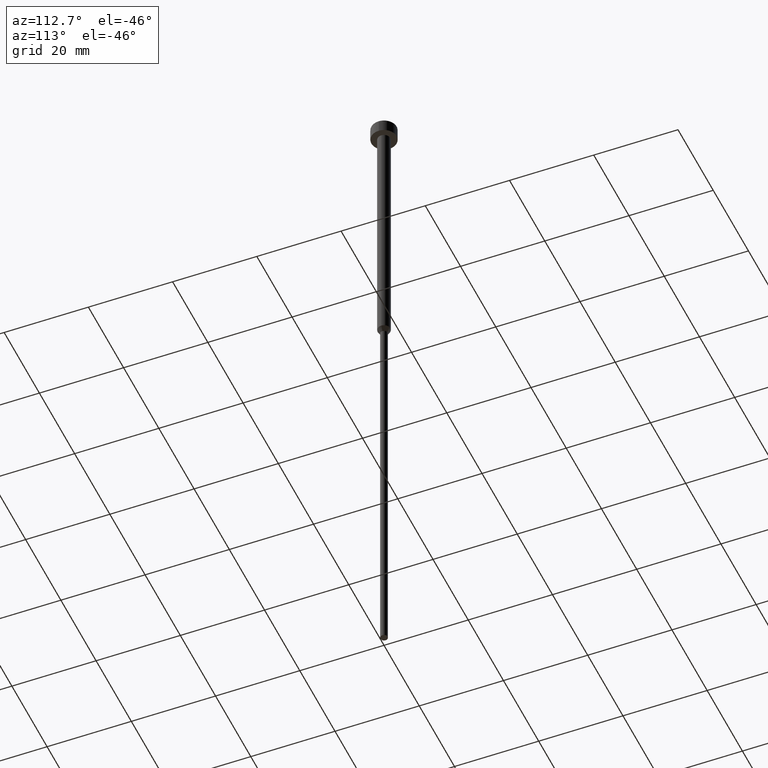
[diagram: clean part render]
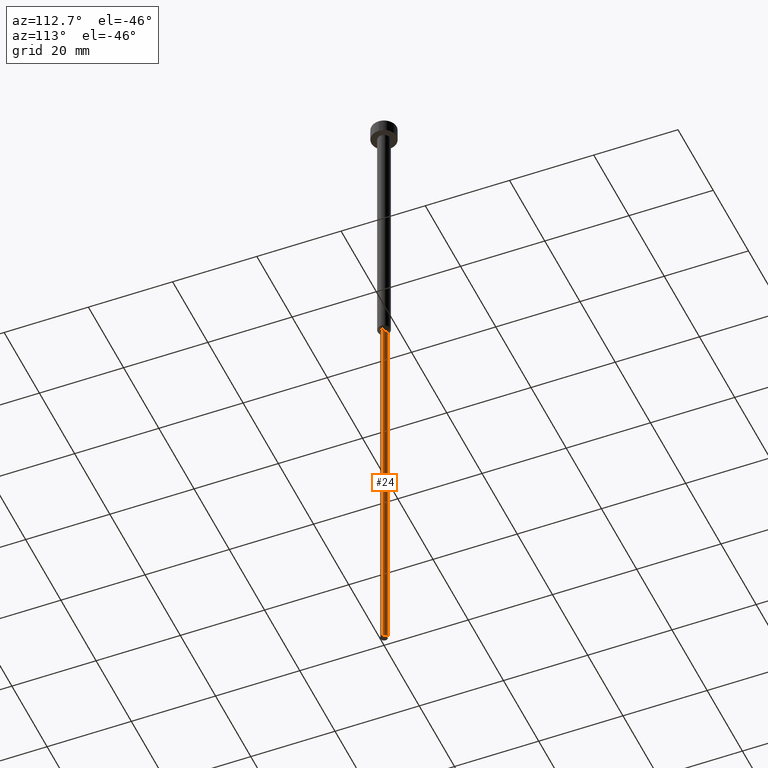
[diagram: same view with one face highlighted and labeled with its STEP entity id]
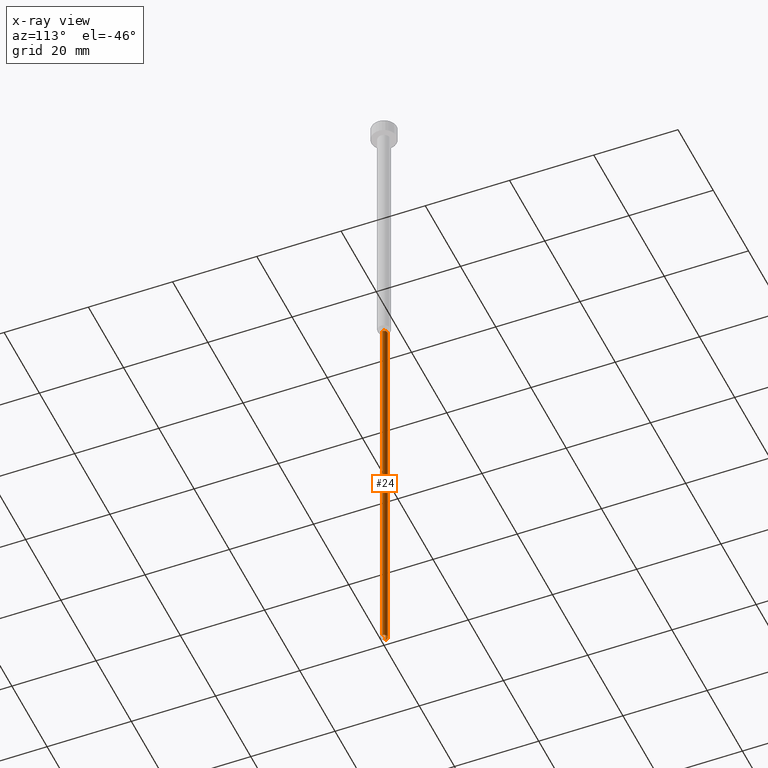
[diagram: x-ray of the same camera — body ghosted, the highlighted face saturated]
A machine part, auxiliary view. The second image highlights one B-rep face of the part: STEP entity #24.
The next image is the same camera in x-ray: the body ghosted, the highlighted face saturated — about 0% of this face is hidden behind the body in this view.
In plain terms, the highlighted cylindrical surface (edge-blend (fillet) strip) has radius 0.85 mm, axis along (-0, -0, 1).
Its self-contained STEP definition (entity closure, byte-faithful):
#1 = CYLINDRICAL_SURFACE ( 'NONE', #282, 0.8499999999999998668 ) ;
#22 = ORIENTED_EDGE ( 'NONE', *, *, #211, .F. ) ;
#24 = ADVANCED_FACE ( 'NONE', ( #52 ), #1, .T. ) ;
#35 = DIRECTION ( 'NONE',  ( 1.000000000000000000, 0.000000000000000000, 0.000000000000000000 ) ) ;
#50 = ORIENTED_EDGE ( 'NONE', *, *, #247, .F. ) ;
#52 = FACE_OUTER_BOUND ( 'NONE', #53, .T. ) ;
#53 = EDGE_LOOP ( 'NONE', ( #268, #105, #22, #50 ) ) ;
#54 = CIRCLE ( 'NONE', #303, 0.8499999999999998668 ) ;
#58 = CIRCLE ( 'NONE', #314, 0.8499999999999999778 ) ;
#59 = EDGE_CURVE ( 'NONE', #78, #185, #69, .T. ) ;
#69 = LINE ( 'NONE', #74, #301 ) ;
#74 = CARTESIAN_POINT ( 'NONE',  ( -0.8499999999999998668, 1.040949779275250017E-16, 0.000000000000000000 ) ) ;
#78 = VERTEX_POINT ( 'NONE', #289 ) ;
#83 = DIRECTION ( 'NONE',  ( 1.000000000000000000, 0.000000000000000000, 0.000000000000000000 ) ) ;
#90 = CARTESIAN_POINT ( 'NONE',  ( 0.8499999999999999778, 0.000000000000000000, -64.12583302491977122 ) ) ;
#105 = ORIENTED_EDGE ( 'NONE', *, *, #59, .T. ) ;
#109 = VECTOR ( 'NONE', #248, 1000.000000000000000 ) ;
#115 = CARTESIAN_POINT ( 'NONE',  ( 0.8499999999999998668, 0.000000000000000000, 0.000000000000000000 ) ) ;
#161 = CARTESIAN_POINT ( 'NONE',  ( -0.8500000000000000888, 1.040949779275250263E-16, -64.12583302491977122 ) ) ;
#174 = LINE ( 'NONE', #115, #109 ) ;
#185 = VERTEX_POINT ( 'NONE', #161 ) ;
#204 = CARTESIAN_POINT ( 'NONE',  ( 0.000000000000000000, 0.000000000000000000, -64.12583302491977122 ) ) ;
#211 = EDGE_CURVE ( 'NONE', #354, #185, #58, .T. ) ;
#213 = VERTEX_POINT ( 'NONE', #320 ) ;
#221 = CARTESIAN_POINT ( 'NONE',  ( 0.000000000000000000, 0.000000000000000000, 0.000000000000000000 ) ) ;
#227 = DIRECTION ( 'NONE',  ( -0.000000000000000000, -0.000000000000000000, 1.000000000000000000 ) ) ;
#228 = CARTESIAN_POINT ( 'NONE',  ( 0.000000000000000000, 0.000000000000000000, -160.0000000000000000 ) ) ;
#234 = DIRECTION ( 'NONE',  ( -0.000000000000000000, -0.000000000000000000, 1.000000000000000000 ) ) ;
#247 = EDGE_CURVE ( 'NONE', #213, #354, #174, .T. ) ;
#248 = DIRECTION ( 'NONE',  ( -0.000000000000000000, -0.000000000000000000, 1.000000000000000000 ) ) ;
#268 = ORIENTED_EDGE ( 'NONE', *, *, #302, .T. ) ;
#282 = AXIS2_PLACEMENT_3D ( 'NONE', #221, #326, #83 ) ;
#289 = CARTESIAN_POINT ( 'NONE',  ( -0.8499999999999998668, 1.040949779275250017E-16, -160.0000000000000000 ) ) ;
#301 = VECTOR ( 'NONE', #309, 1000.000000000000000 ) ;
#302 = EDGE_CURVE ( 'NONE', #213, #78, #54, .T. ) ;
#303 = AXIS2_PLACEMENT_3D ( 'NONE', #228, #227, #35 ) ;
#309 = DIRECTION ( 'NONE',  ( -0.000000000000000000, -0.000000000000000000, 1.000000000000000000 ) ) ;
#314 = AXIS2_PLACEMENT_3D ( 'NONE', #204, #234, #341 ) ;
#320 = CARTESIAN_POINT ( 'NONE',  ( 0.8499999999999998668, 0.000000000000000000, -160.0000000000000000 ) ) ;
#326 = DIRECTION ( 'NONE',  ( -0.000000000000000000, -0.000000000000000000, 1.000000000000000000 ) ) ;
#341 = DIRECTION ( 'NONE',  ( 1.000000000000000000, 0.000000000000000000, 0.000000000000000000 ) ) ;
#354 = VERTEX_POINT ( 'NONE', #90 ) ;